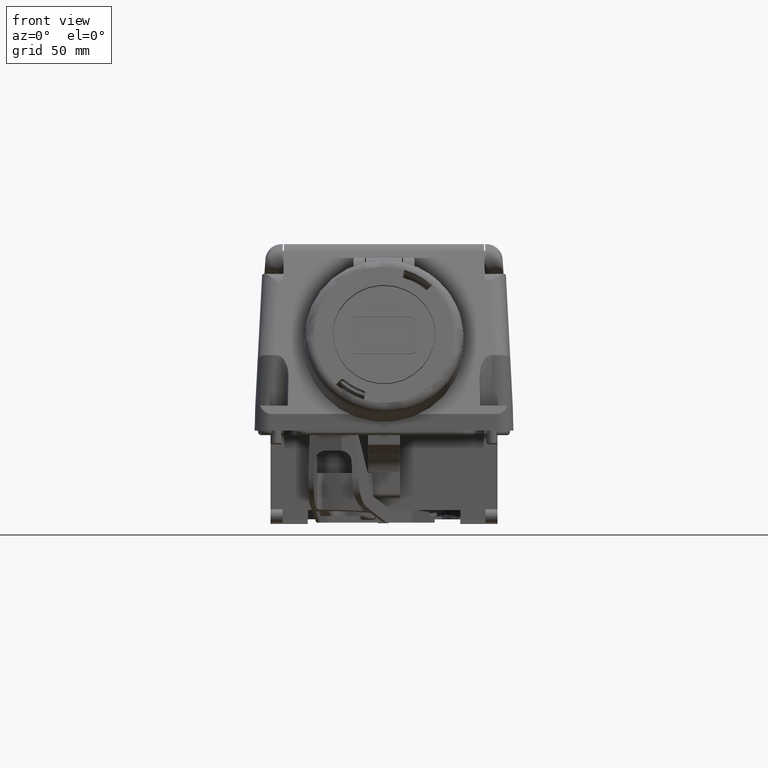
[diagram: clean part render]
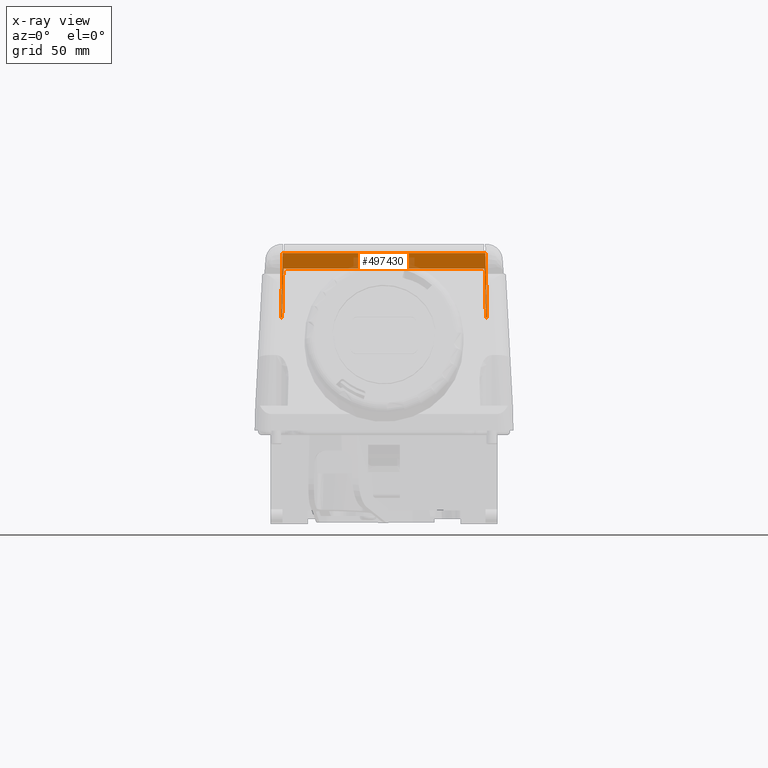
[diagram: x-ray — body ghosted, one internal face saturated and labeled with its STEP entity id]
A machine part, front view, then the same camera in x-ray: the body is ghosted and one INTERNAL B-rep face — a face not visible from any outside direction — is saturated and labeled: STEP entity #497430.
In plain terms, the highlighted planar face has unit normal (-0, -1, -0).
Its self-contained STEP definition (entity closure, byte-faithful):
#47260=CARTESIAN_POINT('',(317.338905172194,3.78163385883293,
51.2461970753136));
#47270=VERTEX_POINT('',#47260);
#47320=CARTESIAN_POINT('',(318.680834069532,3.78163678464261,0.));
#47330=DIRECTION('',(0.0261769483079655,5.70736414899631E-8,
-0.999657324975553));
#47340=VECTOR('',#47330,1.);
#47350=LINE('',#47320,#47340);
#47360=CARTESIAN_POINT('',(317.900458653798,3.78163508318887,
29.8013348000523));
#47370=VERTEX_POINT('',#47360);
#47380=EDGE_CURVE('',#47270,#47370,#47350,.T.);
#257570=CARTESIAN_POINT('',(228.099541346192,3.78163508318888,
29.8013348000522));
#257580=VERTEX_POINT('',#257570);
#257610=CARTESIAN_POINT('',(227.319165930458,3.78163678464262,0.));
#257620=DIRECTION('',(-0.0261769483079655,5.7073641496902E-8,
-0.999657324975553));
#257630=VECTOR('',#257620,1.);
#257640=LINE('',#257610,#257630);
#257650=CARTESIAN_POINT('',(228.661094827796,3.78163385883294,
51.2461970753078));
#257660=VERTEX_POINT('',#257650);
#257670=EDGE_CURVE('',#257660,#257580,#257640,.T.);
#276200=CARTESIAN_POINT('',(0.,3.78163385883297,51.2461970752929));
#276210=DIRECTION('',(1.,-1.40173108120138E-16,6.54410389867602E-14));
#276220=VECTOR('',#276210,1.);
#276230=LINE('',#276200,#276220);
#276240=EDGE_CURVE('',#257660,#47270,#276230,.T.);
#495970=CARTESIAN_POINT('',(228.351113292909,3.78163346306934,
58.1780803173865));
#495980=VERTEX_POINT('',#495970);
#496010=CARTESIAN_POINT('',(226.82766675341,3.78163678464239,
4.15251427579206E-6));
#496020=DIRECTION('',(-0.026176948307866,5.70736414966144E-8,
-0.999657324975556));
#496030=VECTOR('',#496020,1.);
#496040=LINE('',#496010,#496030);
#496050=CARTESIAN_POINT('',(227.608042060404,3.78163508318888,
29.801334800052));
#496060=VERTEX_POINT('',#496050);
#496070=EDGE_CURVE('',#495980,#496060,#496040,.T.);
#496870=CARTESIAN_POINT('',(272.999999999995,3.78163508318887,
29.8013348000522));
#496880=DIRECTION('',(-1.,-6.5225655971223E-15,-4.98207194552287E-16));
#496890=VECTOR('',#496880,1.);
#496900=LINE('',#496870,#496890);
#496910=EDGE_CURVE('',#257580,#496060,#496900,.T.);
#497130=CARTESIAN_POINT('',(272.999999999995,3.7816335186727,
57.2041779873457));
#497140=DIRECTION('',(-1.40169371881429E-16,-0.999999999999998,
-5.70932059089599E-8));
#497150=DIRECTION('',(-7.16094181960601E-15,-5.70932059089599E-8,
0.999999999999998));
#497160=AXIS2_PLACEMENT_3D('',#497130,#497140,#497150);
#497170=PLANE('',#497160);
#497180=ORIENTED_EDGE('',*,*,#496070,.T.);
#497190=CARTESIAN_POINT('',(-9.60636002775665E-14,3.78163346309777,
58.178080317383));
#497200=DIRECTION('',(-1.,1.2448514897908E-13,-1.48735927409119E-14));
#497210=VECTOR('',#497200,1.);
#497220=LINE('',#497190,#497210);
#497230=CARTESIAN_POINT('',(317.648886707081,3.78163346305822,
58.1780803173878));
#497240=VERTEX_POINT('',#497230);
#497250=EDGE_CURVE('',#497240,#495980,#497220,.T.);
#497260=ORIENTED_EDGE('',*,*,#497250,.T.);
#497270=CARTESIAN_POINT('',(319.172333246581,3.78163678464237,
4.15251427579236E-6));
#497280=DIRECTION('',(0.0261769483078803,5.70736414931446E-8,
-0.999657324975556));
#497290=VECTOR('',#497280,1.);
#497300=LINE('',#497270,#497290);
#497310=CARTESIAN_POINT('',(318.391957939587,3.78163508318887,
29.8013348000525));
#497320=VERTEX_POINT('',#497310);
#497330=EDGE_CURVE('',#497240,#497320,#497300,.T.);
#497340=ORIENTED_EDGE('',*,*,#497330,.F.);
#497350=EDGE_CURVE('',#497320,#47370,#496900,.T.);
#497360=ORIENTED_EDGE('',*,*,#497350,.F.);
#497370=ORIENTED_EDGE('',*,*,#47380,.T.);
#497380=ORIENTED_EDGE('',*,*,#276240,.T.);
#497390=ORIENTED_EDGE('',*,*,#257670,.F.);
#497400=ORIENTED_EDGE('',*,*,#496910,.F.);
#497410=EDGE_LOOP('',(#497400,#497390,#497380,#497370,#497360,#497340,
#497260,#497180));
#497420=FACE_OUTER_BOUND('',#497410,.T.);
#497430=ADVANCED_FACE('',(#497420),#497170,.T.);